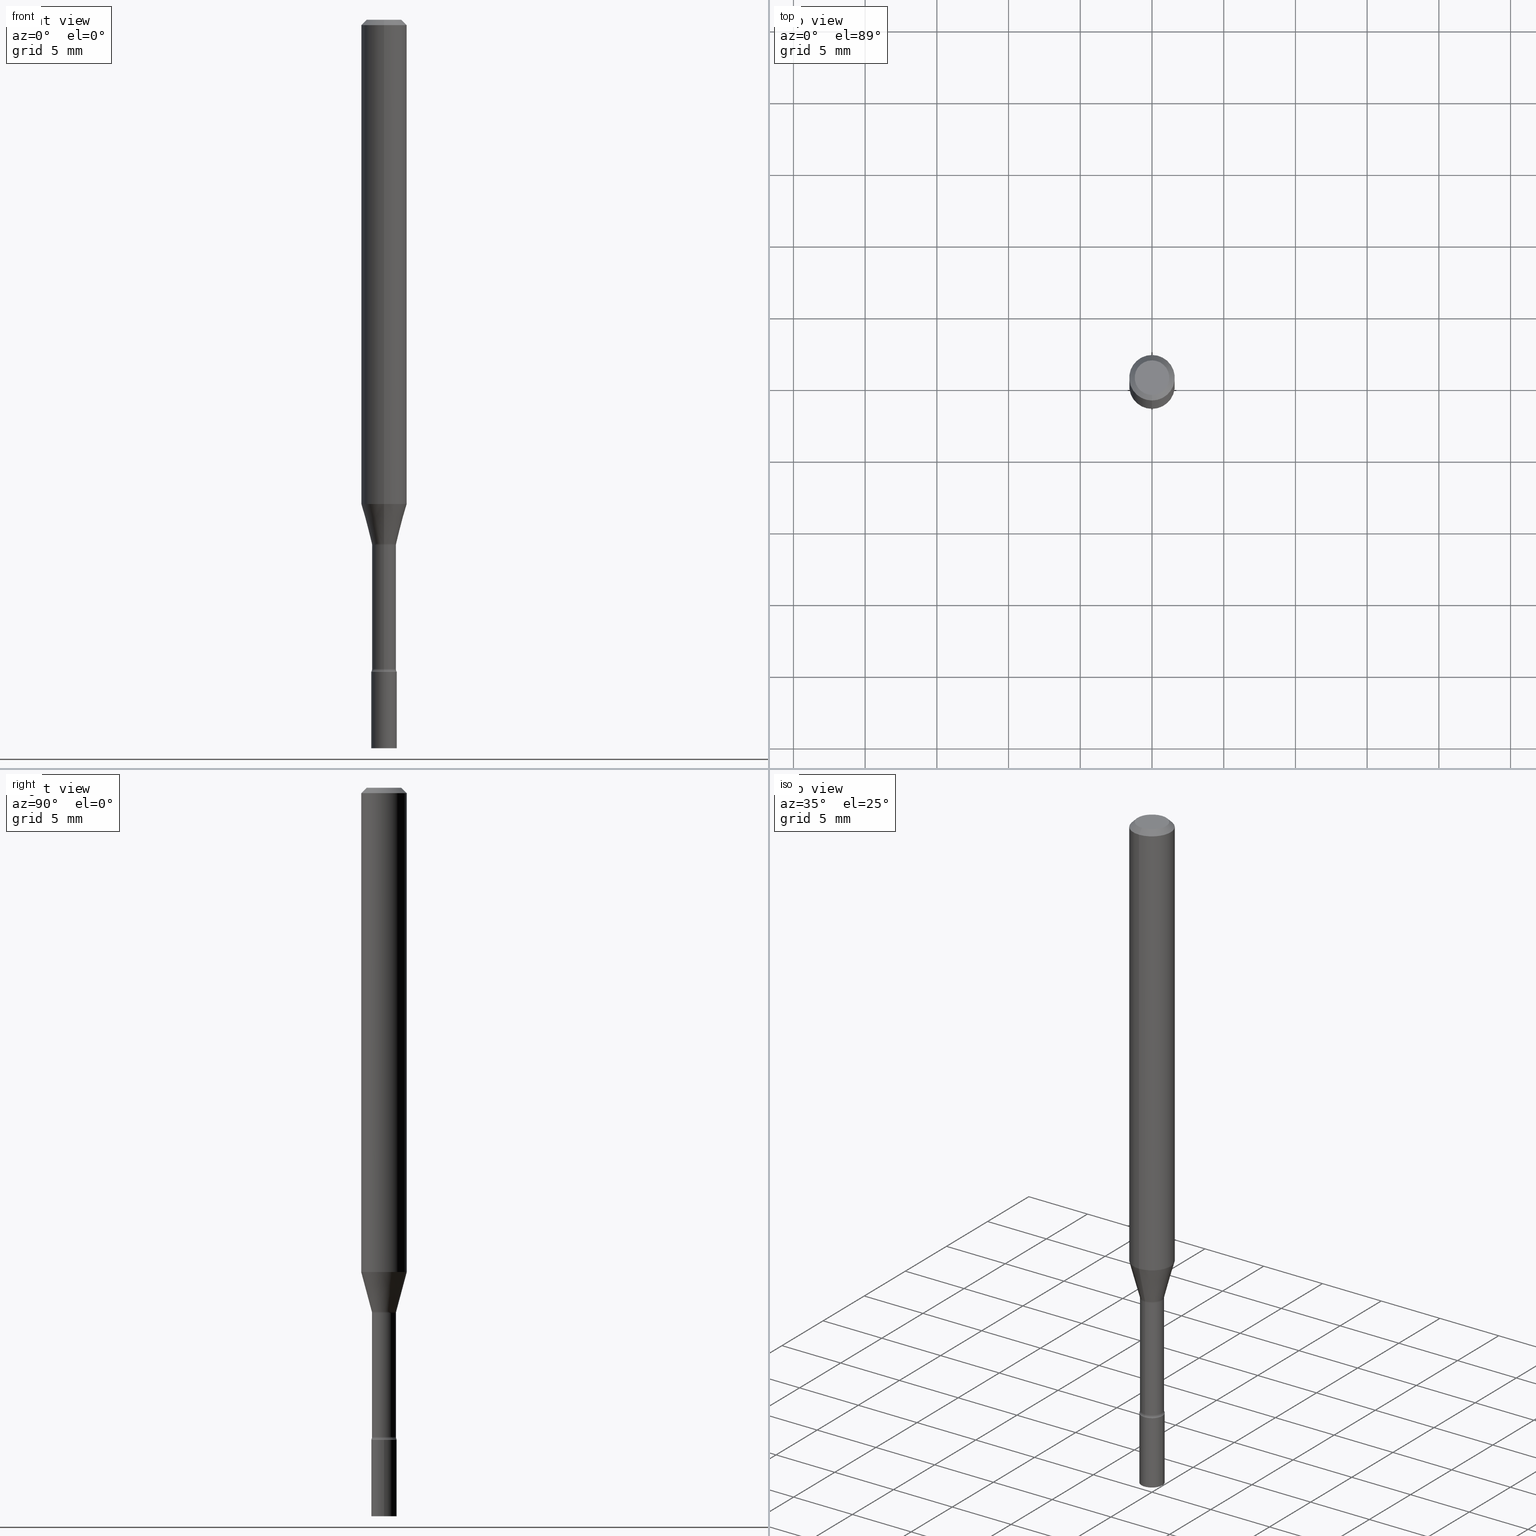
[diagram: canonical four-view strip — front | top / right | iso, engineering-drawing reading convention]
A machine part, canonical four-view strip (front | top / right | iso — engineering-drawing reading convention). The complete STEP part file that produces these views, byte-faithful:
ISO-10303-21;
HEADER;
FILE_DESCRIPTION (( 'STEP AP203' ),
    '1' );
FILE_NAME ('04281.STEP',
    '2024-03-08T22:48:45',
    ( '' ),
    ( '' ),
    'SwSTEP 2.0',
    'SolidWorks 2023',
    '' );
FILE_SCHEMA (( 'CONFIG_CONTROL_DESIGN' ));
ENDSEC;

DATA;
#1 = ORIENTED_EDGE ( 'NONE', *, *, #490, .F. ) ;
#2 = DIRECTION ( 'NONE',  ( -6.982962677686265922E-15, -1.000000000000000000, 3.491440174855477289E-15 ) ) ;
#3 = CARTESIAN_POINT ( 'NONE',  ( 3.526304362048191557E-29, -5.034628061512206795E-15, -1.441974787463810914 ) ) ;
#4 = DIRECTION ( 'NONE',  ( 1.000000000000000000, -6.982962677686276966E-15, 0.000000000000000000 ) ) ;
#5 = CALENDAR_DATE ( 2024, 8, 3 ) ;
#6 = CARTESIAN_POINT ( 'NONE',  ( -0.03500000000000000333, -6.367667179591725930E-15, -2.000000000000000000 ) ) ;
#7 = PLANE ( 'NONE',  #217 ) ;
#8 = ADVANCED_FACE ( 'NONE', ( #228 ), #348, .T. ) ;
#9 = AXIS2_PLACEMENT_3D ( 'NONE', #37, #315, #71 ) ;
#10 = CC_DESIGN_APPROVAL ( #183, ( #154 ) ) ;
#11 = ADVANCED_FACE ( 'NONE', ( #78 ), #240, .T. ) ;
#12 = COORDINATED_UNIVERSAL_TIME_OFFSET ( 5, 0, .BEHIND. ) ;
#13 =( CONVERSION_BASED_UNIT ( 'INCH', #373 ) LENGTH_UNIT ( ) NAMED_UNIT ( #346 ) );
#14 = PERSON_AND_ORGANIZATION_ROLE ( 'creator' ) ;
#15 = APPROVAL_STATUS ( 'not_yet_approved' ) ;
#16 = TOROIDAL_SURFACE ( 'NONE', #203, 0.04789999999999999813, 0.01500000000000002373 ) ;
#17 = ADVANCED_BREP_SHAPE_REPRESENTATION ( '04281', ( #100, #91, #34 ), #404 ) ;
#18 = DIRECTION ( 'NONE',  ( -6.982962677686266711E-15, -1.000000000000000000, 0.000000000000000000 ) ) ;
#19 = ORIENTED_EDGE ( 'NONE', *, *, #252, .T. ) ;
#20 = AXIS2_PLACEMENT_3D ( 'NONE', #301, #498, #146 ) ;
#21 = CIRCLE ( 'NONE', #96, 0.03500000000000000333 ) ;
#22 = FACE_OUTER_BOUND ( 'NONE', #124, .T. ) ;
#23 = EDGE_CURVE ( 'NONE', #248, #106, #420, .T. ) ;
#24 = ORIENTED_EDGE ( 'NONE', *, *, #122, .T. ) ;
#25 = DIRECTION ( 'NONE',  ( -6.982962677686266711E-15, -1.000000000000000000, 3.491440174855477683E-15 ) ) ;
#26 = ORIENTED_EDGE ( 'NONE', *, *, #419, .T. ) ;
#27 = CARTESIAN_POINT ( 'NONE',  ( 0.000000000000000000, 0.000000000000000000, 0.000000000000000000 ) ) ;
#28 = ADVANCED_FACE ( 'NONE', ( #69 ), #110, .F. ) ;
#29 = ORIENTED_EDGE ( 'NONE', *, *, #230, .F. ) ;
#30 = CARTESIAN_POINT ( 'NONE',  ( 0.03500000000000000333, -7.227366371405310342E-15, -2.000000000000000000 ) ) ;
#31 = DIRECTION ( 'NONE',  ( -2.445497550844091636E-29, 3.491440174855477289E-15, 1.000000000000000000 ) ) ;
#32 = AXIS2_PLACEMENT_3D ( 'NONE', #3, #166, #311 ) ;
#33 = VERTEX_POINT ( 'NONE', #30 ) ;
#34 = AXIS2_PLACEMENT_3D ( 'NONE', #53, #443, #372 ) ;
#35 = DIRECTION ( 'NONE',  ( -6.982962677686265922E-15, -1.000000000000000000, 4.370956789862821150E-15 ) ) ;
#36 = PRODUCT_DEFINITION ( 'UNKNOWN', '', #441, #160 ) ;
#37 = CARTESIAN_POINT ( 'NONE',  ( 4.377389163071394665E-29, -6.249751596529231267E-15, -1.790000000000000036 ) ) ;
#38 = VERTEX_POINT ( 'NONE', #350 ) ;
#39 = FACE_OUTER_BOUND ( 'NONE', #57, .T. ) ;
#40 = DIRECTION ( 'NONE',  ( 6.982962677686265922E-15, 1.000000000000000000, -3.483106191921935554E-15 ) ) ;
#41 = AXIS2_PLACEMENT_3D ( 'NONE', #201, #162, #269 ) ;
#42 = CC_DESIGN_DATE_AND_TIME_ASSIGNMENT ( #439, #171, ( #154 ) ) ;
#43 = ORIENTED_EDGE ( 'NONE', *, *, #506, .F. ) ;
#44 = DIRECTION ( 'NONE',  ( -6.982962677686265922E-15, -1.000000000000000000, 4.370956789862821150E-15 ) ) ;
#45 = ORIENTED_EDGE ( 'NONE', *, *, #325, .T. ) ;
#46 = PERSON ( 'UNSPECIFIED', 'UNSPECIFIED', 'UNSPECIFIED', ('UNSPECIFIED'), ('UNSPECIFIED'), ('UNSPECIFIED') ) ;
#47 = AXIS2_PLACEMENT_3D ( 'NONE', #516, #278, #436 ) ;
#48 = CARTESIAN_POINT ( 'NONE',  ( 0.03500000000000000333, -2.444036937190193250E-16, 1.706661871528577808E-30 ) ) ;
#49 = AXIS2_PLACEMENT_3D ( 'NONE', #321, #80, #242 ) ;
#50 = CALENDAR_DATE ( 2024, 8, 3 ) ;
#51 = ORIENTED_EDGE ( 'NONE', *, *, #206, .F. ) ;
#52 = CARTESIAN_POINT ( 'NONE',  ( 0.000000000000000000, 0.000000000000000000, 0.000000000000000000 ) ) ;
#53 = CARTESIAN_POINT ( 'NONE',  ( 0.000000000000000000, 0.000000000000000000, 0.000000000000000000 ) ) ;
#54 = AXIS2_PLACEMENT_3D ( 'NONE', #418, #297, #234 ) ;
#55 = CC_DESIGN_PERSON_AND_ORGANIZATION_ASSIGNMENT ( #366, #14, ( #441 ) ) ;
#56 = DIRECTION ( 'NONE',  ( -2.445468806185136597E-29, 3.491481338843145583E-15, 1.000000000000000000 ) ) ;
#57 = EDGE_LOOP ( 'NONE', ( #187, #339, #26, #64 ) ) ;
#58 = CARTESIAN_POINT ( 'NONE',  ( 7.071368001490160098E-46, -1.009580170017690001E-31, -2.891586621728324684E-17 ) ) ;
#59 = CARTESIAN_POINT ( 'NONE',  ( 3.516851691008029319E-29, -5.021013935898507834E-15, -1.438092501787272992 ) ) ;
#60 = ORIENTED_EDGE ( 'NONE', *, *, #254, .F. ) ;
#61 = FACE_OUTER_BOUND ( 'NONE', #169, .T. ) ;
#62 = CIRCLE ( 'NONE', #481, 0.04749999999999999362 ) ;
#63 = AXIS2_PLACEMENT_3D ( 'NONE', #149, #109, #267 ) ;
#64 = ORIENTED_EDGE ( 'NONE', *, *, #126, .T. ) ;
#65 = CALENDAR_DATE ( 2024, 8, 3 ) ;
#66 = FACE_OUTER_BOUND ( 'NONE', #471, .T. ) ;
#67 = VERTEX_POINT ( 'NONE', #504 ) ;
#68 = ORIENTED_EDGE ( 'NONE', *, *, #449, .T. ) ;
#69 = FACE_OUTER_BOUND ( 'NONE', #334, .T. ) ;
#70 = ORIENTED_EDGE ( 'NONE', *, *, #492, .F. ) ;
#71 = DIRECTION ( 'NONE',  ( 1.000000000000000000, -6.982962677686265922E-15, 4.876176775795935793E-29 ) ) ;
#72 = DIRECTION ( 'NONE',  ( -4.851104656540964275E-15, -0.7071067811865500152, -0.7071067811865450192 ) ) ;
#73 = CARTESIAN_POINT ( 'NONE',  ( 4.377389163071394665E-29, -6.249751596529231267E-15, -1.790000000000000036 ) ) ;
#74 = AXIS2_PLACEMENT_3D ( 'NONE', #344, #184, #459 ) ;
#75 = AXIS2_PLACEMENT_3D ( 'NONE', #363, #192, #2 ) ;
#76 = DIRECTION ( 'NONE',  ( -2.445497550844091636E-29, 3.491440174855477683E-15, 1.000000000000000000 ) ) ;
#77 = ORIENTED_EDGE ( 'NONE', *, *, #23, .F. ) ;
#78 = FACE_OUTER_BOUND ( 'NONE', #394, .T. ) ;
#79 = CC_DESIGN_DATE_AND_TIME_ASSIGNMENT ( #173, #131, ( #36 ) ) ;
#80 = DIRECTION ( 'NONE',  ( -2.445497550844091636E-29, 3.491440174855477289E-15, 1.000000000000000000 ) ) ;
#81 = LINE ( 'NONE', #139, #335 ) ;
#82 = EDGE_LOOP ( 'NONE', ( #342, #385 ) ) ;
#83 = VECTOR ( 'NONE', #72, 39.37007874015748143 ) ;
#84 = PERSON_AND_ORGANIZATION_ROLE ( 'classification_officer' ) ;
#85 = DIRECTION ( 'NONE',  ( -2.445497550844091636E-29, 3.491440174855477289E-15, 1.000000000000000000 ) ) ;
#86 = ADVANCED_FACE ( 'NONE', ( #305 ), #282, .T. ) ;
#87 = ORIENTED_EDGE ( 'NONE', *, *, #380, .T. ) ;
#88 = DATE_AND_TIME ( #213, #488 ) ;
#89 = LINE ( 'NONE', #127, #386 ) ;
#90 = ADVANCED_FACE ( 'NONE', ( #188 ), #463, .F. ) ;
#91 = MANIFOLD_SOLID_BREP ( 'Body-Move/Copy2[2]', #101 ) ;
#92 = VERTEX_POINT ( 'NONE', #294 ) ;
#93 = DIRECTION ( 'NONE',  ( 2.438088387897960049E-29, -3.491481338843145188E-15, -1.000000000000000000 ) ) ;
#94 = CIRCLE ( 'NONE', #289, 0.04749999999999999362 ) ;
#95 = ORIENTED_EDGE ( 'NONE', *, *, #419, .F. ) ;
#96 = AXIS2_PLACEMENT_3D ( 'NONE', #473, #435, #4 ) ;
#97 = PERSON_AND_ORGANIZATION ( #46, #112 ) ;
#98 = EDGE_CURVE ( 'NONE', #296, #117, #507, .T. ) ;
#99 = CARTESIAN_POINT ( 'NONE',  ( 0.000000000000000000, 0.000000000000000000, 0.000000000000000000 ) ) ;
#100 = MANIFOLD_SOLID_BREP ( 'Body-Move/Copy2[1]', #135 ) ;
#101 = CLOSED_SHELL ( 'NONE', ( #389, #235, #28, #86, #360, #359, #330, #11, #241, #90, #150, #445, #410, #298 ) ) ;
#102 = AXIS2_PLACEMENT_3D ( 'NONE', #341, #31, #391 ) ;
#103 = CC_DESIGN_APPROVAL ( #337, ( #36 ) ) ;
#104 = DIRECTION ( 'NONE',  ( -2.445497550844091636E-29, 3.491440174855477289E-15, 1.000000000000000000 ) ) ;
#105 = CARTESIAN_POINT ( 'NONE',  ( -4.364351673553912750E-16, -0.06250000000000005551, -0.01499999999999981209 ) ) ;
#106 = VERTEX_POINT ( 'NONE', #105 ) ;
#107 = CARTESIAN_POINT ( 'NONE',  ( 7.071368001490160098E-46, -1.009580170017690001E-31, -2.891586621728324684E-17 ) ) ;
#108 = EDGE_LOOP ( 'NONE', ( #438, #233, #231, #1 ) ) ;
#109 = DIRECTION ( 'NONE',  ( -2.445497550844091356E-29, 3.491440174855477683E-15, 1.000000000000000000 ) ) ;
#110 = TOROIDAL_SURFACE ( 'NONE', #517, 0.04790000000000004671, 0.01500000000000008098 ) ;
#111 = CIRCLE ( 'NONE', #432, 0.01500000000000001853 ) ;
#112 = ORGANIZATION ( 'UNSPECIFIED', 'UNSPECIFIED', '' ) ;
#113 = EDGE_LOOP ( 'NONE', ( #19, #276, #60, #392 ) ) ;
#114 = CARTESIAN_POINT ( 'NONE',  ( -4.287811248607203282E-16, -0.06250000000000005551, -0.01499999999999981209 ) ) ;
#115 = DIRECTION ( 'NONE',  ( -2.445497550844091636E-29, 3.491440174855477289E-15, 1.000000000000000000 ) ) ;
#116 = ORIENTED_EDGE ( 'NONE', *, *, #482, .F. ) ;
#117 = VERTEX_POINT ( 'NONE', #454 ) ;
#118 = DIRECTION ( 'NONE',  ( -2.445468806185136597E-29, 3.491481338843145583E-15, 1.000000000000000000 ) ) ;
#119 = DIRECTION ( 'NONE',  ( -2.445497550844091636E-29, 3.491440174855477683E-15, 1.000000000000000000 ) ) ;
#120 = CARTESIAN_POINT ( 'NONE',  ( 4.364351673553919652E-16, 0.06249999999999995143, -0.01500000000000024751 ) ) ;
#121 = AXIS2_PLACEMENT_3D ( 'NONE', #338, #197, #493 ) ;
#122 = EDGE_CURVE ( 'NONE', #268, #478, #370, .T. ) ;
#123 = ORIENTED_EDGE ( 'NONE', *, *, #206, .T. ) ;
#124 = EDGE_LOOP ( 'NONE', ( #357, #496, #383, #43 ) ) ;
#125 = DIRECTION ( 'NONE',  ( 2.445497550844091636E-29, -3.491440174855477289E-15, -1.000000000000000000 ) ) ;
#126 = EDGE_CURVE ( 'NONE', #388, #478, #141, .T. ) ;
#127 = CARTESIAN_POINT ( 'NONE',  ( 2.337685600650728039E-16, 0.03289999999999998481, -1.148683817527451486E-16 ) ) ;
#128 = CIRCLE ( 'NONE', #136, 0.06250000000000000000 ) ;
#129 = APPROVAL_ROLE ( '' ) ;
#130 = DIRECTION ( 'NONE',  ( 1.000000000000000000, -7.105427357601001070E-15, 4.926315004428625025E-29 ) ) ;
#131 = DATE_TIME_ROLE ( 'creation_date' ) ;
#132 = APPROVAL_DATE_TIME ( #88, #183 ) ;
#133 = CARTESIAN_POINT ( 'NONE',  ( -2.297394720958343216E-16, -0.03290000000000618818, -1.782345589506695971 ) ) ;
#134 = EDGE_CURVE ( 'NONE', #67, #38, #94, .T. ) ;
#135 = CLOSED_SHELL ( 'NONE', ( #176, #434, #8, #520 ) ) ;
#136 = AXIS2_PLACEMENT_3D ( 'NONE', #364, #85, #245 ) ;
#137 = DIRECTION ( 'NONE',  ( -2.445497550844091636E-29, 3.491440174855477289E-15, 1.000000000000000000 ) ) ;
#138 = EDGE_CURVE ( 'NONE', #38, #67, #62, .T. ) ;
#139 = CARTESIAN_POINT ( 'NONE',  ( 4.440892098500625669E-16, 0.06250000000000000000, -2.182150109284673306E-16 ) ) ;
#140 = COORDINATED_UNIVERSAL_TIME_OFFSET ( 5, 0, .BEHIND. ) ;
#141 = CIRCLE ( 'NONE', #361, 0.03500000000000000333 ) ;
#142 = CARTESIAN_POINT ( 'NONE',  ( 4.377440616010924152E-29, -6.249677912991305136E-15, -1.790000000000000036 ) ) ;
#143 = AXIS2_PLACEMENT_3D ( 'NONE', #59, #104, #18 ) ;
#144 = CARTESIAN_POINT ( 'NONE',  ( -2.333085523452895390E-16, -0.03341111260566900082, -1.438092501787272992 ) ) ;
#145 = ORIENTED_EDGE ( 'NONE', *, *, #449, .F. ) ;
#146 = DIRECTION ( 'NONE',  ( 7.105427357601001859E-15, 1.000000000000000000, 0.000000000000000000 ) ) ;
#147 = ORIENTED_EDGE ( 'NONE', *, *, #271, .T. ) ;
#148 = COORDINATED_UNIVERSAL_TIME_OFFSET ( 5, 0, .BEHIND. ) ;
#149 = CARTESIAN_POINT ( 'NONE',  ( 2.444036937190630575E-16, 0.03499999999999375139, -1.790000000000000036 ) ) ;
#150 = ADVANCED_FACE ( 'NONE', ( #61 ), #225, .F. ) ;
#151 = ORIENTED_EDGE ( 'NONE', *, *, #313, .F. ) ;
#152 = ORIENTED_EDGE ( 'NONE', *, *, #199, .T. ) ;
#153 = CIRCLE ( 'NONE', #185, 0.03341111260566397706 ) ;
#154 = SECURITY_CLASSIFICATION ( '', '', #207 ) ;
#155 = ORIENTED_EDGE ( 'NONE', *, *, #397, .T. ) ;
#156 = CARTESIAN_POINT ( 'NONE',  ( 0.03500000000000000333, -6.494155290248250444E-15, -1.790000000000000036 ) ) ;
#157 = CYLINDRICAL_SURFACE ( 'NONE', #371, 0.06250000000000000000 ) ;
#158 = ORIENTED_EDGE ( 'NONE', *, *, #181, .F. ) ;
#159 = DIRECTION ( 'NONE',  ( 1.000000000000000000, -6.982962677686276966E-15, 0.000000000000000000 ) ) ;
#160 = DESIGN_CONTEXT ( 'detailed design', #212, 'design' ) ;
#161 = AXIS2_PLACEMENT_3D ( 'NONE', #205, #247, #44 ) ;
#162 = DIRECTION ( 'NONE',  ( -1.000000000000000000, 6.982962677686265922E-15, -4.883557194083112340E-29 ) ) ;
#163 = ORIENTED_EDGE ( 'NONE', *, *, #482, .T. ) ;
#164 = DIRECTION ( 'NONE',  ( -2.445468806185136597E-29, 3.491481338843145583E-15, 1.000000000000000000 ) ) ;
#165 = ORIENTED_EDGE ( 'NONE', *, *, #286, .F. ) ;
#166 = DIRECTION ( 'NONE',  ( -2.445497550844091636E-29, 3.491440174855477289E-15, 1.000000000000000000 ) ) ;
#167 = FACE_OUTER_BOUND ( 'NONE', #513, .T. ) ;
#168 = ORIENTED_EDGE ( 'NONE', *, *, #249, .T. ) ;
#169 = EDGE_LOOP ( 'NONE', ( #270, #220 ) ) ;
#170 = LINE ( 'NONE', #406, #453 ) ;
#171 = DATE_TIME_ROLE ( 'classification_date' ) ;
#172 = CARTESIAN_POINT ( 'NONE',  ( 3.403499704291231294E-16, 0.04789999999999496050, -1.441974787463811136 ) ) ;
#173 = DATE_AND_TIME ( #367, #257 ) ;
#174 = AXIS2_PLACEMENT_3D ( 'NONE', #191, #345, #35 ) ;
#175 = VECTOR ( 'NONE', #329, 39.37007874015749564 ) ;
#176 = ADVANCED_FACE ( 'NONE', ( #66 ), #390, .T. ) ;
#177 = CC_DESIGN_PERSON_AND_ORGANIZATION_ASSIGNMENT ( #328, #483, ( #365 ) ) ;
#178 = COORDINATED_UNIVERSAL_TIME_OFFSET ( 5, 0, .BEHIND. ) ;
#179 = VECTOR ( 'NONE', #119, 39.37007874015748143 ) ;
#180 = PERSON_AND_ORGANIZATION_ROLE ( 'creator' ) ;
#181 = EDGE_CURVE ( 'NONE', #38, #106, #224, .T. ) ;
#182 = ORIENTED_EDGE ( 'NONE', *, *, #457, .T. ) ;
#183 = APPROVAL ( #244, 'UNSPECIFIED' ) ;
#184 = DIRECTION ( 'NONE',  ( 2.445497550844091356E-29, -3.491440174855477683E-15, -1.000000000000000000 ) ) ;
#185 = AXIS2_PLACEMENT_3D ( 'NONE', #464, #115, #511 ) ;
#186 = APPLICATION_CONTEXT ( 'configuration controlled 3d designs of mechanical parts and assemblies' ) ;
#187 = ORIENTED_EDGE ( 'NONE', *, *, #122, .F. ) ;
#188 = FACE_OUTER_BOUND ( 'NONE', #421, .T. ) ;
#189 = ORIENTED_EDGE ( 'NONE', *, *, #263, .T. ) ;
#190 = DIRECTION ( 'NONE',  ( -6.982962677686265922E-15, -1.000000000000000000, 3.491440174855477289E-15 ) ) ;
#191 = CARTESIAN_POINT ( 'NONE',  ( 3.251365528373244956E-29, -4.641978980917113845E-15, -1.329531296095961546 ) ) ;
#192 = DIRECTION ( 'NONE',  ( -2.445497550844091636E-29, 3.491440174855477289E-15, 1.000000000000000000 ) ) ;
#193 = ORIENTED_EDGE ( 'NONE', *, *, #138, .T. ) ;
#194 = TOROIDAL_SURFACE ( 'NONE', #32, 0.04789999999999999813, 0.01500000000000002373 ) ;
#195 = FACE_OUTER_BOUND ( 'NONE', #196, .T. ) ;
#196 = EDGE_LOOP ( 'NONE', ( #163, #68 ) ) ;
#197 = DIRECTION ( 'NONE',  ( -1.000000000000000000, 6.982962677686265922E-15, -4.883557194083112340E-29 ) ) ;
#198 = DIRECTION ( 'NONE',  ( -6.982962677686265922E-15, -1.000000000000000000, 0.000000000000000000 ) ) ;
#199 = EDGE_CURVE ( 'NONE', #455, #296, #487, .T. ) ;
#200 = CARTESIAN_POINT ( 'NONE',  ( 0.000000000000000000, 0.000000000000000000, 0.000000000000000000 ) ) ;
#201 = CARTESIAN_POINT ( 'NONE',  ( -3.344839122611288745E-16, -0.04790000000000627089, -1.782345589506695749 ) ) ;
#202 = CARTESIAN_POINT ( 'NONE',  ( 3.526345811121679173E-29, -5.034568704079838244E-15, -1.441974787463810914 ) ) ;
#203 = AXIS2_PLACEMENT_3D ( 'NONE', #378, #491, #288 ) ;
#204 = APPROVAL_PERSON_ORGANIZATION ( #336, #460, #500 ) ;
#205 = CARTESIAN_POINT ( 'NONE',  ( 3.251365528373244956E-29, -4.641978980917113845E-15, -1.329531296095961546 ) ) ;
#206 = EDGE_CURVE ( 'NONE', #268, #398, #89, .T. ) ;
#207 = SECURITY_CLASSIFICATION_LEVEL ( 'unclassified' ) ;
#208 = FACE_OUTER_BOUND ( 'NONE', #82, .T. ) ;
#209 = DATE_AND_TIME ( #65, #327 ) ;
#210 = DIRECTION ( 'NONE',  ( -2.445468806185136877E-29, 3.491481338843145188E-15, 1.000000000000000000 ) ) ;
#211 = AXIS2_PLACEMENT_3D ( 'NONE', #317, #401, #437 ) ;
#212 = APPLICATION_CONTEXT ( 'configuration controlled 3d designs of mechanical parts and assemblies' ) ;
#213 = CALENDAR_DATE ( 2024, 8, 3 ) ;
#214 = APPROVAL_DATE_TIME ( #209, #460 ) ;
#215 = PERSON_AND_ORGANIZATION ( #46, #112 ) ;
#216 = VECTOR ( 'NONE', #274, 39.37007874015748143 ) ;
#217 = AXIS2_PLACEMENT_3D ( 'NONE', #489, #93, #369 ) ;
#218 = CARTESIAN_POINT ( 'NONE',  ( 2.412292587905978021E-16, 0.03289999999999374675, -1.782345589506695971 ) ) ;
#219 = EDGE_CURVE ( 'NONE', #33, #258, #21, .T. ) ;
#220 = ORIENTED_EDGE ( 'NONE', *, *, #457, .F. ) ;
#221 = DIRECTION ( 'NONE',  ( -2.445497550844091636E-29, 3.491440174855477289E-15, 1.000000000000000000 ) ) ;
#222 = DIRECTION ( 'NONE',  ( 1.839019923739599526E-15, 0.2588190451025248473, 0.9659258262890670910 ) ) ;
#223 = ORIENTED_EDGE ( 'NONE', *, *, #230, .T. ) ;
#224 = LINE ( 'NONE', #114, #83 ) ;
#225 = PLANE ( 'NONE',  #63 ) ;
#226 = CIRCLE ( 'NONE', #174, 0.06250000000000000000 ) ;
#227 = ORIENTED_EDGE ( 'NONE', *, *, #506, .T. ) ;
#228 = FACE_OUTER_BOUND ( 'NONE', #462, .T. ) ;
#229 = DIRECTION ( 'NONE',  ( -2.445497550844091636E-29, 3.491440174855477289E-15, 1.000000000000000000 ) ) ;
#230 = EDGE_CURVE ( 'NONE', #117, #398, #326, .T. ) ;
#231 = ORIENTED_EDGE ( 'NONE', *, *, #254, .T. ) ;
#232 = DIRECTION ( 'NONE',  ( -6.982962677686265922E-15, -1.000000000000000000, 0.000000000000000000 ) ) ;
#233 = ORIENTED_EDGE ( 'NONE', *, *, #181, .T. ) ;
#234 = DIRECTION ( 'NONE',  ( 6.982962677686265922E-15, 1.000000000000000000, -3.483106191921935554E-15 ) ) ;
#235 = ADVANCED_FACE ( 'NONE', ( #518 ), #239, .T. ) ;
#236 = CIRCLE ( 'NONE', #266, 0.03289999999999996400 ) ;
#237 = APPROVAL_PERSON_ORGANIZATION ( #97, #183, #129 ) ;
#238 = CARTESIAN_POINT ( 'NONE',  ( 4.377440616010924152E-29, -6.249677912991305136E-15, -1.790000000000000036 ) ) ;
#239 = CYLINDRICAL_SURFACE ( 'NONE', #211, 0.03289999999999998481 ) ;
#240 = CYLINDRICAL_SURFACE ( 'NONE', #332, 0.06250000000000000000 ) ;
#241 = ADVANCED_FACE ( 'NONE', ( #167 ), #395, .T. ) ;
#242 = DIRECTION ( 'NONE',  ( -6.982962677686265922E-15, -1.000000000000000000, 0.000000000000000000 ) ) ;
#243 = AXIS2_PLACEMENT_3D ( 'NONE', #202, #358, #368 ) ;
#244 = APPROVAL_STATUS ( 'not_yet_approved' ) ;
#245 = DIRECTION ( 'NONE',  ( -6.982962677686265922E-15, -1.000000000000000000, 3.483106191921935554E-15 ) ) ;
#246 = CARTESIAN_POINT ( 'NONE',  ( -2.333085523452895390E-16, -0.03341111260566900082, -1.438092501787272992 ) ) ;
#247 = DIRECTION ( 'NONE',  ( -2.445497550844091636E-29, 3.491440174855477289E-15, 1.000000000000000000 ) ) ;
#248 = VERTEX_POINT ( 'NONE', #279 ) ;
#249 = EDGE_CURVE ( 'NONE', #509, #268, #273, .T. ) ;
#250 = CC_DESIGN_PERSON_AND_ORGANIZATION_ASSIGNMENT ( #290, #84, ( #154 ) ) ;
#251 = AXIS2_PLACEMENT_3D ( 'NONE', #426, #221, #429 ) ;
#252 = EDGE_CURVE ( 'NONE', #499, #92, #422, .T. ) ;
#253 =( NAMED_UNIT ( * ) SI_UNIT ( $, .STERADIAN. ) SOLID_ANGLE_UNIT ( ) );
#254 = EDGE_CURVE ( 'NONE', #106, #248, #128, .T. ) ;
#255 = FACE_OUTER_BOUND ( 'NONE', #281, .T. ) ;
#256 = AXIS2_PLACEMENT_3D ( 'NONE', #381, #56, #379 ) ;
#257 = LOCAL_TIME ( 17, 48, 45.00000000000000000, #140 ) ;
#258 = VERTEX_POINT ( 'NONE', #6 ) ;
#259 = DIRECTION ( 'NONE',  ( -2.445497550844091636E-29, 3.491440174855477289E-15, 1.000000000000000000 ) ) ;
#260 = EDGE_LOOP ( 'NONE', ( #51, #428, #312, #70 ) ) ;
#261 = DIRECTION ( 'NONE',  ( -2.445497550844091636E-29, 3.491440174855477289E-15, 1.000000000000000000 ) ) ;
#262 = DIRECTION ( 'NONE',  ( -6.982962677686265922E-15, -1.000000000000000000, 3.491440174855477289E-15 ) ) ;
#263 = EDGE_CURVE ( 'NONE', #455, #398, #111, .T. ) ;
#264 = ORIENTED_EDGE ( 'NONE', *, *, #271, .F. ) ;
#265 = ORIENTED_EDGE ( 'NONE', *, *, #333, .F. ) ;
#266 = AXIS2_PLACEMENT_3D ( 'NONE', #355, #427, #232 ) ;
#267 = DIRECTION ( 'NONE',  ( -6.982962677686265922E-15, -1.000000000000000000, 3.491440174855477683E-15 ) ) ;
#268 = VERTEX_POINT ( 'NONE', #218 ) ;
#269 = DIRECTION ( 'NONE',  ( -6.982962677686267499E-15, -1.000000000000000000, 0.000000000000000000 ) ) ;
#270 = ORIENTED_EDGE ( 'NONE', *, *, #126, .F. ) ;
#271 = EDGE_CURVE ( 'NONE', #33, #475, #331, .T. ) ;
#272 = FACE_OUTER_BOUND ( 'NONE', #260, .T. ) ;
#273 = CIRCLE ( 'NONE', #49, 0.03289999999999996400 ) ;
#274 = DIRECTION ( 'NONE',  ( 4.937700262164548042E-15, 0.7071067811865451302, -0.7071067811865499042 ) ) ;
#275 = CARTESIAN_POINT ( 'NONE',  ( -2.297394720958780541E-16, -0.03289999999999998481, 1.148683817527451486E-16 ) ) ;
#276 = ORIENTED_EDGE ( 'NONE', *, *, #313, .T. ) ;
#277 = PRODUCT_DEFINITION_SHAPE ( 'NONE', 'NONE',  #36 ) ;
#278 = DIRECTION ( 'NONE',  ( -2.445468806185136597E-29, 3.491481338843145583E-15, 1.000000000000000000 ) ) ;
#279 = CARTESIAN_POINT ( 'NONE',  ( 4.440892098500952553E-16, 0.06249999999999993755, -0.01500000000000024751 ) ) ;
#280 = FACE_OUTER_BOUND ( 'NONE', #308, .T. ) ;
#281 = EDGE_LOOP ( 'NONE', ( #353, #189, #503, #458 ) ) ;
#282 = CONICAL_SURFACE ( 'NONE', #54, 0.06250000000000000000, 0.7853981633974483900 ) ;
#283 = AXIS2_PLACEMENT_3D ( 'NONE', #27, #467, #343 ) ;
#284 = CC_DESIGN_SECURITY_CLASSIFICATION ( #154, ( #441 ) ) ;
#285 = PERSON_AND_ORGANIZATION ( #46, #112 ) ;
#286 = EDGE_CURVE ( 'NONE', #509, #117, #444, .T. ) ;
#287 = APPLICATION_PROTOCOL_DEFINITION ( 'international standard', 'config_control_design', 1994, #212 ) ;
#288 = DIRECTION ( 'NONE',  ( -6.982962677686265133E-15, -1.000000000000000000, 3.491440174855477289E-15 ) ) ;
#289 = AXIS2_PLACEMENT_3D ( 'NONE', #58, #456, #423 ) ;
#290 = PERSON_AND_ORGANIZATION ( #46, #112 ) ;
#291 = LOCAL_TIME ( 17, 48, 45.00000000000000000, #446 ) ;
#292 = FACE_OUTER_BOUND ( 'NONE', #322, .T. ) ;
#293 = TOROIDAL_SURFACE ( 'NONE', #75, 0.04790000000000004671, 0.01500000000000008098 ) ;
#294 = CARTESIAN_POINT ( 'NONE',  ( 4.440892098500948609E-16, 0.06249999999999532319, -1.329531296095961768 ) ) ;
#295 = CARTESIAN_POINT ( 'NONE',  ( 2.374002335562076701E-16, 0.03341111260565896024, -1.438092501787272992 ) ) ;
#296 = VERTEX_POINT ( 'NONE', #246 ) ;
#297 = DIRECTION ( 'NONE',  ( 2.445497550844091636E-29, -3.491440174855477289E-15, -1.000000000000000000 ) ) ;
#298 = ADVANCED_FACE ( 'NONE', ( #280 ), #16, .F. ) ;
#299 = ORIENTED_EDGE ( 'NONE', *, *, #430, .F. ) ;
#300 = DIRECTION ( 'NONE',  ( -2.445497550844091636E-29, 3.491440174855477289E-15, 1.000000000000000000 ) ) ;
#301 = CARTESIAN_POINT ( 'NONE',  ( 3.403499704291318562E-16, 0.04789999999999382252, -1.782345589506696193 ) ) ;
#302 = ORIENTED_EDGE ( 'NONE', *, *, #501, .T. ) ;
#303 = APPROVAL_STATUS ( 'not_yet_approved' ) ;
#304 = CIRCLE ( 'NONE', #409, 0.03500000000000000333 ) ;
#305 = FACE_OUTER_BOUND ( 'NONE', #108, .T. ) ;
#306 = DIRECTION ( 'NONE',  ( 1.000000000000000000, -6.982962677686276966E-15, 0.000000000000000000 ) ) ;
#307 = ORIENTED_EDGE ( 'NONE', *, *, #98, .T. ) ;
#308 = EDGE_LOOP ( 'NONE', ( #347, #416, #307, #223 ) ) ;
#309 = CARTESIAN_POINT ( 'NONE',  ( 3.407447217031514627E-16, 0.03341111260565895330, -1.438092501787272992 ) ) ;
#310 = ORIENTED_EDGE ( 'NONE', *, *, #219, .T. ) ;
#311 = DIRECTION ( 'NONE',  ( -6.982962677686265133E-15, -1.000000000000000000, 3.491440174855477289E-15 ) ) ;
#312 = ORIENTED_EDGE ( 'NONE', *, *, #286, .T. ) ;
#313 = EDGE_CURVE ( 'NONE', #92, #248, #81, .T. ) ;
#314 = AXIS2_PLACEMENT_3D ( 'NONE', #497, #300, #442 ) ;
#315 = DIRECTION ( 'NONE',  ( -2.438088387897960049E-29, 3.491481338843145188E-15, 1.000000000000000000 ) ) ;
#316 = ORIENTED_EDGE ( 'NONE', *, *, #501, .F. ) ;
#317 = CARTESIAN_POINT ( 'NONE',  ( 0.000000000000000000, 0.000000000000000000, 0.000000000000000000 ) ) ;
#318 = DIRECTION ( 'NONE',  ( -2.445468806185136877E-29, 3.491481338843145188E-15, 1.000000000000000000 ) ) ;
#319 = ORIENTED_EDGE ( 'NONE', *, *, #23, .T. ) ;
#320 = LINE ( 'NONE', #470, #179 ) ;
#321 = CARTESIAN_POINT ( 'NONE',  ( 4.358721773896393938E-29, -6.222952996680146850E-15, -1.782345589506695971 ) ) ;
#322 = EDGE_LOOP ( 'NONE', ( #265, #152, #227, #476 ) ) ;
#323 = APPROVAL_PERSON_ORGANIZATION ( #285, #337, #448 ) ;
#324 = APPLICATION_PROTOCOL_DEFINITION ( 'international standard', 'config_control_design', 1994, #186 ) ;
#325 = EDGE_CURVE ( 'NONE', #258, #33, #450, .T. ) ;
#326 = CIRCLE ( 'NONE', #243, 0.03289999999999999869 ) ;
#327 = LOCAL_TIME ( 17, 48, 45.00000000000000000, #148 ) ;
#328 = PERSON_AND_ORGANIZATION ( #46, #112 ) ;
#329 = DIRECTION ( 'NONE',  ( -1.807323732225329350E-15, -0.2588190451025180194, 0.9659258262890689783 ) ) ;
#330 = ADVANCED_FACE ( 'NONE', ( #292 ), #494, .T. ) ;
#331 = LINE ( 'NONE', #48, #519 ) ;
#332 = AXIS2_PLACEMENT_3D ( 'NONE', #99, #340, #190 ) ;
#333 = EDGE_CURVE ( 'NONE', #455, #92, #495, .T. ) ;
#334 = EDGE_LOOP ( 'NONE', ( #299, #24, #182, #95 ) ) ;
#335 = VECTOR ( 'NONE', #412, 39.37007874015748143 ) ;
#336 = PERSON_AND_ORGANIZATION ( #46, #112 ) ;
#337 = APPROVAL ( #15, 'UNSPECIFIED' ) ;
#338 = CARTESIAN_POINT ( 'NONE',  ( -3.344839122611368617E-16, -0.04790000000000502883, -1.441974787463810692 ) ) ;
#339 = ORIENTED_EDGE ( 'NONE', *, *, #249, .F. ) ;
#340 = DIRECTION ( 'NONE',  ( -2.445497550844091636E-29, 3.491440174855477289E-15, 1.000000000000000000 ) ) ;
#341 = CARTESIAN_POINT ( 'NONE',  ( 3.516851691008029319E-29, -5.021013935898507834E-15, -1.438092501787272992 ) ) ;
#342 = ORIENTED_EDGE ( 'NONE', *, *, #219, .F. ) ;
#343 = DIRECTION ( 'NONE',  ( 1.000000000000000000, -6.982962677686265922E-15, 4.876176775795936353E-29 ) ) ;
#344 = CARTESIAN_POINT ( 'NONE',  ( 3.316907271900976096E-16, 0.04749999999999999362, -1.803013414142767792E-16 ) ) ;
#345 = DIRECTION ( 'NONE',  ( -2.445497550844091636E-29, 3.491440174855477289E-15, 1.000000000000000000 ) ) ;
#346 = DIMENSIONAL_EXPONENTS ( 1.000000000000000000, 0.000000000000000000, 0.000000000000000000, 0.000000000000000000, 0.000000000000000000, 0.000000000000000000, 0.000000000000000000 ) ;
#347 = ORIENTED_EDGE ( 'NONE', *, *, #263, .F. ) ;
#348 = CYLINDRICAL_SURFACE ( 'NONE', #47, 0.03500000000000000333 ) ;
#349 = VECTOR ( 'NONE', #222, 39.37007874015748143 ) ;
#350 = CARTESIAN_POINT ( 'NONE',  ( -3.773273898774340269E-16, -0.04749999999999999362, 1.369275420883519305E-16 ) ) ;
#351 = AXIS2_PLACEMENT_3D ( 'NONE', #374, #137, #405 ) ;
#352 = CARTESIAN_POINT ( 'NONE',  ( -0.03500000000000000333, -6.367667179591725930E-15, -1.790000000000000036 ) ) ;
#353 = ORIENTED_EDGE ( 'NONE', *, *, #199, .F. ) ;
#354 = CARTESIAN_POINT ( 'NONE',  ( -2.444036937189758884E-16, -0.03500000000000629691, -1.789999999999999813 ) ) ;
#355 = CARTESIAN_POINT ( 'NONE',  ( 4.358721773896393938E-29, -6.222952996680146850E-15, -1.782345589506695971 ) ) ;
#356 = DIRECTION ( 'NONE',  ( -2.445497550844091636E-29, 3.491440174855477289E-15, 1.000000000000000000 ) ) ;
#357 = ORIENTED_EDGE ( 'NONE', *, *, #466, .T. ) ;
#358 = DIRECTION ( 'NONE',  ( -2.445497550844091636E-29, 3.491440174855477289E-15, 1.000000000000000000 ) ) ;
#359 = ADVANCED_FACE ( 'NONE', ( #22 ), #402, .T. ) ;
#360 = ADVANCED_FACE ( 'NONE', ( #512 ), #157, .T. ) ;
#361 = AXIS2_PLACEMENT_3D ( 'NONE', #142, #259, #387 ) ;
#362 = CIRCLE ( 'NONE', #41, 0.01500000000000007924 ) ;
#363 = CARTESIAN_POINT ( 'NONE',  ( 4.358670540980283234E-29, -6.223026365132013835E-15, -1.782345589506695971 ) ) ;
#364 = CARTESIAN_POINT ( 'NONE',  ( 3.668246326266144706E-31, -5.237160262283227027E-17, -0.01500000000000003067 ) ) ;
#365 = PRODUCT ( '04281', '04281', '', ( #413 ) ) ;
#366 = PERSON_AND_ORGANIZATION ( #46, #112 ) ;
#367 = CALENDAR_DATE ( 2024, 8, 3 ) ;
#368 = DIRECTION ( 'NONE',  ( -6.982962677686265133E-15, -1.000000000000000000, 0.000000000000000000 ) ) ;
#369 = DIRECTION ( 'NONE',  ( -1.000000000000000000, 6.982962677686265922E-15, -4.876176775795935793E-29 ) ) ;
#370 = CIRCLE ( 'NONE', #20, 0.01500000000000007924 ) ;
#371 = AXIS2_PLACEMENT_3D ( 'NONE', #52, #468, #262 ) ;
#372 = DIRECTION ( 'NONE',  ( 1.000000000000000000, 0.000000000000000000, 0.000000000000000000 ) ) ;
#373 = LENGTH_MEASURE_WITH_UNIT ( LENGTH_MEASURE( 0.02539999999999999897 ), #485 );
#374 = CARTESIAN_POINT ( 'NONE',  ( 3.526345811121679173E-29, -5.034568704079838244E-15, -1.441974787463810914 ) ) ;
#375 = PERSON_AND_ORGANIZATION ( #46, #112 ) ;
#376 = AXIS2_PLACEMENT_3D ( 'NONE', #238, #505, #198 ) ;
#377 = UNCERTAINTY_MEASURE_WITH_UNIT (LENGTH_MEASURE( 1.000000000000000082E-05 ), #13, 'distance_accuracy_value', 'NONE');
#378 = CARTESIAN_POINT ( 'NONE',  ( 3.526304362048191557E-29, -5.034628061512206795E-15, -1.441974787463810914 ) ) ;
#379 = DIRECTION ( 'NONE',  ( 1.000000000000000000, -6.982962677686276966E-15, 0.000000000000000000 ) ) ;
#380 = EDGE_CURVE ( 'NONE', #92, #499, #226, .T. ) ;
#381 = CARTESIAN_POINT ( 'NONE',  ( 4.890937612370273194E-29, -6.982962677686291165E-15, -2.000000000000000000 ) ) ;
#382 = ORIENTED_EDGE ( 'NONE', *, *, #134, .T. ) ;
#383 = ORIENTED_EDGE ( 'NONE', *, *, #252, .F. ) ;
#384 = CARTESIAN_POINT ( 'NONE',  ( 4.358670540980283234E-29, -6.223026365132013835E-15, -1.782345589506695971 ) ) ;
#385 = ORIENTED_EDGE ( 'NONE', *, *, #325, .F. ) ;
#386 = VECTOR ( 'NONE', #76, 39.37007874015748143 ) ;
#387 = DIRECTION ( 'NONE',  ( -6.982962677686265922E-15, -1.000000000000000000, 0.000000000000000000 ) ) ;
#388 = VERTEX_POINT ( 'NONE', #354 ) ;
#389 = ADVANCED_FACE ( 'NONE', ( #255 ), #194, .F. ) ;
#390 = CYLINDRICAL_SURFACE ( 'NONE', #283, 0.03500000000000000333 ) ;
#391 = DIRECTION ( 'NONE',  ( -6.982962677686266711E-15, -1.000000000000000000, 0.000000000000000000 ) ) ;
#392 = ORIENTED_EDGE ( 'NONE', *, *, #397, .F. ) ;
#393 = DIRECTION ( 'NONE',  ( -6.982962677686265922E-15, -1.000000000000000000, 3.491440174855477289E-15 ) ) ;
#394 = EDGE_LOOP ( 'NONE', ( #151, #87, #155, #77 ) ) ;
#395 = CONICAL_SURFACE ( 'NONE', #414, 0.06250000000000000000, 0.7853981633974483900 ) ;
#396 = CC_DESIGN_APPROVAL ( #460, ( #441 ) ) ;
#397 = EDGE_CURVE ( 'NONE', #499, #106, #320, .T. ) ;
#398 = VERTEX_POINT ( 'NONE', #479 ) ;
#399 = CC_DESIGN_PERSON_AND_ORGANIZATION_ASSIGNMENT ( #215, #180, ( #36 ) ) ;
#400 = DIRECTION ( 'NONE',  ( -2.445497550844091636E-29, 3.491440174855477683E-15, 1.000000000000000000 ) ) ;
#401 = DIRECTION ( 'NONE',  ( -2.445497550844091636E-29, 3.491440174855477289E-15, 1.000000000000000000 ) ) ;
#402 = CONICAL_SURFACE ( 'NONE', #102, 0.03341111260566397706, 0.2617993877991501850 ) ;
#403 = ORIENTED_EDGE ( 'NONE', *, *, #490, .T. ) ;
#404 =( GEOMETRIC_REPRESENTATION_CONTEXT ( 3 ) GLOBAL_UNCERTAINTY_ASSIGNED_CONTEXT ( ( #377 ) ) GLOBAL_UNIT_ASSIGNED_CONTEXT ( ( #13, #451, #253 ) ) REPRESENTATION_CONTEXT ( 'NONE', 'WORKASPACE' ) );
#405 = DIRECTION ( 'NONE',  ( -6.982962677686265133E-15, -1.000000000000000000, 0.000000000000000000 ) ) ;
#406 = CARTESIAN_POINT ( 'NONE',  ( -0.03500000000000000333, 2.486899575160350887E-16, -1.721627281589217108E-30 ) ) ;
#407 = PERSON_AND_ORGANIZATION_ROLE ( 'design_supplier' ) ;
#408 = DIRECTION ( 'NONE',  ( 7.105427357601001859E-15, 1.000000000000000000, 0.000000000000000000 ) ) ;
#409 = AXIS2_PLACEMENT_3D ( 'NONE', #73, #164, #306 ) ;
#410 = ADVANCED_FACE ( 'NONE', ( #272 ), #431, .T. ) ;
#411 = APPROVAL_DATE_TIME ( #480, #337 ) ;
#412 = DIRECTION ( 'NONE',  ( -2.445497550844091636E-29, 3.491440174855477683E-15, 1.000000000000000000 ) ) ;
#413 = MECHANICAL_CONTEXT ( 'NONE', #186, 'mechanical' ) ;
#414 = AXIS2_PLACEMENT_3D ( 'NONE', #477, #125, #40 ) ;
#415 = CIRCLE ( 'NONE', #351, 0.03289999999999999869 ) ;
#416 = ORIENTED_EDGE ( 'NONE', *, *, #466, .F. ) ;
#417 = ORIENTED_EDGE ( 'NONE', *, *, #134, .F. ) ;
#418 = CARTESIAN_POINT ( 'NONE',  ( 3.668246326266144706E-31, -5.237160262283227027E-17, -0.01500000000000003067 ) ) ;
#419 = EDGE_CURVE ( 'NONE', #509, #388, #362, .T. ) ;
#420 = CIRCLE ( 'NONE', #251, 0.06250000000000000000 ) ;
#421 = EDGE_LOOP ( 'NONE', ( #382, #193 ) ) ;
#422 = CIRCLE ( 'NONE', #161, 0.06250000000000000000 ) ;
#423 = DIRECTION ( 'NONE',  ( -6.982962677686266711E-15, -1.000000000000000000, 3.491440174855477683E-15 ) ) ;
#424 = EDGE_LOOP ( 'NONE', ( #168, #123, #29, #165 ) ) ;
#425 = CC_DESIGN_PERSON_AND_ORGANIZATION_ASSIGNMENT ( #375, #407, ( #441 ) ) ;
#426 = CARTESIAN_POINT ( 'NONE',  ( 3.668246326266144706E-31, -5.237160262283227027E-17, -0.01500000000000003067 ) ) ;
#427 = DIRECTION ( 'NONE',  ( -2.445497550844091636E-29, 3.491440174855477289E-15, 1.000000000000000000 ) ) ;
#428 = ORIENTED_EDGE ( 'NONE', *, *, #430, .T. ) ;
#429 = DIRECTION ( 'NONE',  ( -6.982962677686265922E-15, -1.000000000000000000, 3.483106191921935554E-15 ) ) ;
#430 = EDGE_CURVE ( 'NONE', #268, #509, #236, .T. ) ;
#431 = CYLINDRICAL_SURFACE ( 'NONE', #452, 0.03289999999999998481 ) ;
#432 = AXIS2_PLACEMENT_3D ( 'NONE', #172, #130, #408 ) ;
#433 = PLANE ( 'NONE',  #9 ) ;
#434 = ADVANCED_FACE ( 'NONE', ( #195 ), #433, .T. ) ;
#435 = DIRECTION ( 'NONE',  ( -2.445468806185136597E-29, 3.491481338843145583E-15, 1.000000000000000000 ) ) ;
#436 = DIRECTION ( 'NONE',  ( 1.000000000000000000, -6.982962677686265922E-15, 4.876176775795936353E-29 ) ) ;
#437 = DIRECTION ( 'NONE',  ( -6.982962677686265922E-15, -1.000000000000000000, 3.491440174855477289E-15 ) ) ;
#438 = ORIENTED_EDGE ( 'NONE', *, *, #138, .F. ) ;
#439 = DATE_AND_TIME ( #5, #510 ) ;
#440 = AXIS2_PLACEMENT_3D ( 'NONE', #469, #118, #159 ) ;
#441 = PRODUCT_DEFINITION_FORMATION_WITH_SPECIFIED_SOURCE ( 'ANY', '', #365, .NOT_KNOWN. ) ;
#442 = DIRECTION ( 'NONE',  ( -6.982962677686266711E-15, -1.000000000000000000, 0.000000000000000000 ) ) ;
#443 = DIRECTION ( 'NONE',  ( 0.000000000000000000, 0.000000000000000000, 1.000000000000000000 ) ) ;
#444 = LINE ( 'NONE', #275, #508 ) ;
#445 = ADVANCED_FACE ( 'NONE', ( #39 ), #293, .F. ) ;
#446 = COORDINATED_UNIVERSAL_TIME_OFFSET ( 5, 0, .BEHIND. ) ;
#447 = LINE ( 'NONE', #144, #175 ) ;
#448 = APPROVAL_ROLE ( '' ) ;
#449 = EDGE_CURVE ( 'NONE', #465, #475, #304, .T. ) ;
#450 = CIRCLE ( 'NONE', #256, 0.03500000000000000333 ) ;
#451 =( NAMED_UNIT ( * ) PLANE_ANGLE_UNIT ( ) SI_UNIT ( $, .RADIAN. ) );
#452 = AXIS2_PLACEMENT_3D ( 'NONE', #200, #356, #515 ) ;
#453 = VECTOR ( 'NONE', #210, 39.37007874015748143 ) ;
#454 = CARTESIAN_POINT ( 'NONE',  ( -2.297394720958428512E-16, -0.03290000000000502939, -1.441974787463810914 ) ) ;
#455 = VERTEX_POINT ( 'NONE', #309 ) ;
#456 = DIRECTION ( 'NONE',  ( -2.445497550844091636E-29, 3.491440174855477289E-15, 1.000000000000000000 ) ) ;
#457 = EDGE_CURVE ( 'NONE', #478, #388, #461, .T. ) ;
#458 = ORIENTED_EDGE ( 'NONE', *, *, #98, .F. ) ;
#459 = DIRECTION ( 'NONE',  ( 6.982962677686265922E-15, 1.000000000000000000, -3.491440174855477683E-15 ) ) ;
#460 = APPROVAL ( #303, 'UNSPECIFIED' ) ;
#461 = CIRCLE ( 'NONE', #376, 0.03500000000000000333 ) ;
#462 = EDGE_LOOP ( 'NONE', ( #316, #45, #147, #145 ) ) ;
#463 = PLANE ( 'NONE',  #74 ) ;
#464 = CARTESIAN_POINT ( 'NONE',  ( 3.516851691008029319E-29, -5.021013935898507834E-15, -1.438092501787272992 ) ) ;
#465 = VERTEX_POINT ( 'NONE', #352 ) ;
#466 = EDGE_CURVE ( 'NONE', #296, #455, #153, .T. ) ;
#467 = DIRECTION ( 'NONE',  ( -2.445468806185136597E-29, 3.491481338843145583E-15, 1.000000000000000000 ) ) ;
#468 = DIRECTION ( 'NONE',  ( -2.445497550844091636E-29, 3.491440174855477289E-15, 1.000000000000000000 ) ) ;
#469 = CARTESIAN_POINT ( 'NONE',  ( 4.377389163071394665E-29, -6.249751596529231267E-15, -1.790000000000000036 ) ) ;
#470 = CARTESIAN_POINT ( 'NONE',  ( -4.364351673553916201E-16, -0.06250000000000000000, 2.182150109284673306E-16 ) ) ;
#471 = EDGE_LOOP ( 'NONE', ( #310, #302, #116, #264 ) ) ;
#472 = LINE ( 'NONE', #120, #216 ) ;
#473 = CARTESIAN_POINT ( 'NONE',  ( 4.890937612370273194E-29, -6.982962677686291165E-15, -2.000000000000000000 ) ) ;
#474 = CIRCLE ( 'NONE', #440, 0.03500000000000000333 ) ;
#475 = VERTEX_POINT ( 'NONE', #156 ) ;
#476 = ORIENTED_EDGE ( 'NONE', *, *, #380, .F. ) ;
#477 = CARTESIAN_POINT ( 'NONE',  ( 3.668246326266144706E-31, -5.237160262283227027E-17, -0.01500000000000003067 ) ) ;
#478 = VERTEX_POINT ( 'NONE', #514 ) ;
#479 = CARTESIAN_POINT ( 'NONE',  ( 2.337685600651165364E-16, 0.03289999999999496105, -1.441974787463810914 ) ) ;
#480 = DATE_AND_TIME ( #50, #291 ) ;
#481 = AXIS2_PLACEMENT_3D ( 'NONE', #107, #261, #25 ) ;
#482 = EDGE_CURVE ( 'NONE', #475, #465, #474, .T. ) ;
#483 = PERSON_AND_ORGANIZATION_ROLE ( 'design_owner' ) ;
#484 = CARTESIAN_POINT ( 'NONE',  ( -4.364351673553592768E-16, -0.06250000000000467681, -1.329531296095961101 ) ) ;
#485 =( LENGTH_UNIT ( ) NAMED_UNIT ( * ) SI_UNIT ( $, .METRE. ) );
#486 = SHAPE_DEFINITION_REPRESENTATION ( #277, #17 ) ;
#487 = CIRCLE ( 'NONE', #314, 0.03341111260566397706 ) ;
#488 = LOCAL_TIME ( 17, 48, 45.00000000000000000, #12 ) ;
#489 = CARTESIAN_POINT ( 'NONE',  ( 2.444036937190682344E-16, 0.03499999999999301586, -2.000000000000000000 ) ) ;
#490 = EDGE_CURVE ( 'NONE', #67, #248, #472, .T. ) ;
#491 = DIRECTION ( 'NONE',  ( -2.445497550844091636E-29, 3.491440174855477289E-15, 1.000000000000000000 ) ) ;
#492 = EDGE_CURVE ( 'NONE', #398, #117, #415, .T. ) ;
#493 = DIRECTION ( 'NONE',  ( -6.982962677686267499E-15, -1.000000000000000000, 0.000000000000000000 ) ) ;
#494 = CONICAL_SURFACE ( 'NONE', #143, 0.03341111260566397706, 0.2617993877991501850 ) ;
#495 = LINE ( 'NONE', #295, #349 ) ;
#496 = ORIENTED_EDGE ( 'NONE', *, *, #333, .T. ) ;
#497 = CARTESIAN_POINT ( 'NONE',  ( 3.516851691008029319E-29, -5.021013935898507834E-15, -1.438092501787272992 ) ) ;
#498 = DIRECTION ( 'NONE',  ( 1.000000000000000000, -7.105427357601001070E-15, 4.926315004428625025E-29 ) ) ;
#499 = VERTEX_POINT ( 'NONE', #484 ) ;
#500 = APPROVAL_ROLE ( '' ) ;
#501 = EDGE_CURVE ( 'NONE', #258, #465, #170, .T. ) ;
#502 = PRODUCT_RELATED_PRODUCT_CATEGORY ( 'detail', '', ( #365 ) ) ;
#503 = ORIENTED_EDGE ( 'NONE', *, *, #492, .T. ) ;
#504 = CARTESIAN_POINT ( 'NONE',  ( 3.840629472727447874E-16, 0.04749999999999999362, -1.947592745229183872E-16 ) ) ;
#505 = DIRECTION ( 'NONE',  ( -2.445497550844091636E-29, 3.491440174855477289E-15, 1.000000000000000000 ) ) ;
#506 = EDGE_CURVE ( 'NONE', #296, #499, #447, .T. ) ;
#507 = CIRCLE ( 'NONE', #121, 0.01500000000000001853 ) ;
#508 = VECTOR ( 'NONE', #400, 39.37007874015748143 ) ;
#509 = VERTEX_POINT ( 'NONE', #133 ) ;
#510 = LOCAL_TIME ( 17, 48, 45.00000000000000000, #178 ) ;
#511 = DIRECTION ( 'NONE',  ( -6.982962677686266711E-15, -1.000000000000000000, 0.000000000000000000 ) ) ;
#512 = FACE_OUTER_BOUND ( 'NONE', #113, .T. ) ;
#513 = EDGE_LOOP ( 'NONE', ( #158, #417, #403, #319 ) ) ;
#514 = CARTESIAN_POINT ( 'NONE',  ( 2.486899575160791663E-16, 0.03499999999999379302, -1.790000000000000258 ) ) ;
#515 = DIRECTION ( 'NONE',  ( -6.982962677686265922E-15, -1.000000000000000000, 3.491440174855477289E-15 ) ) ;
#516 = CARTESIAN_POINT ( 'NONE',  ( 0.000000000000000000, 0.000000000000000000, 0.000000000000000000 ) ) ;
#517 = AXIS2_PLACEMENT_3D ( 'NONE', #384, #229, #393 ) ;
#518 = FACE_OUTER_BOUND ( 'NONE', #424, .T. ) ;
#519 = VECTOR ( 'NONE', #318, 39.37007874015748143 ) ;
#520 = ADVANCED_FACE ( 'NONE', ( #208 ), #7, .T. ) ;
ENDSEC;
END-ISO-10303-21;
